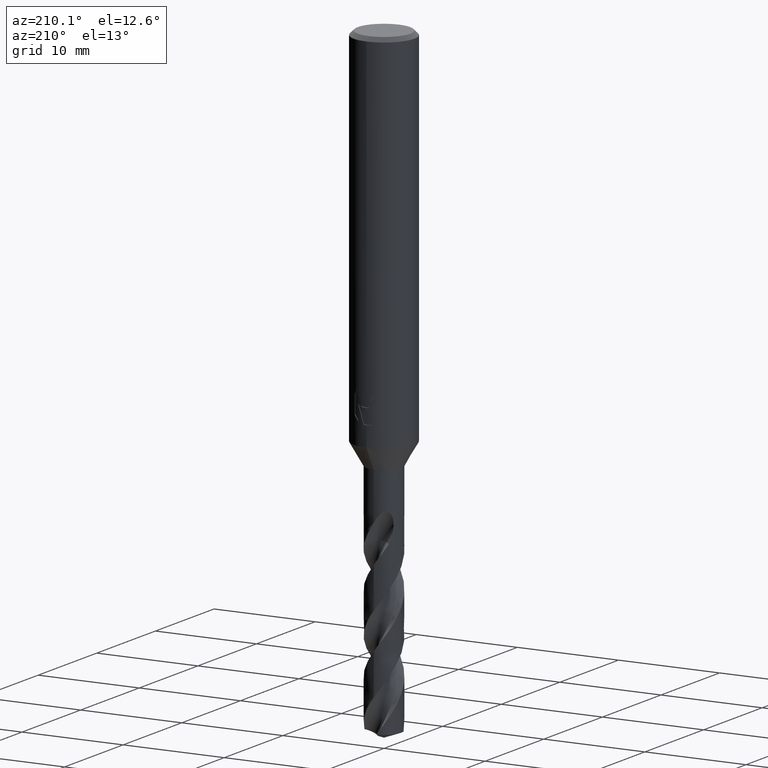
[diagram: clean part render]
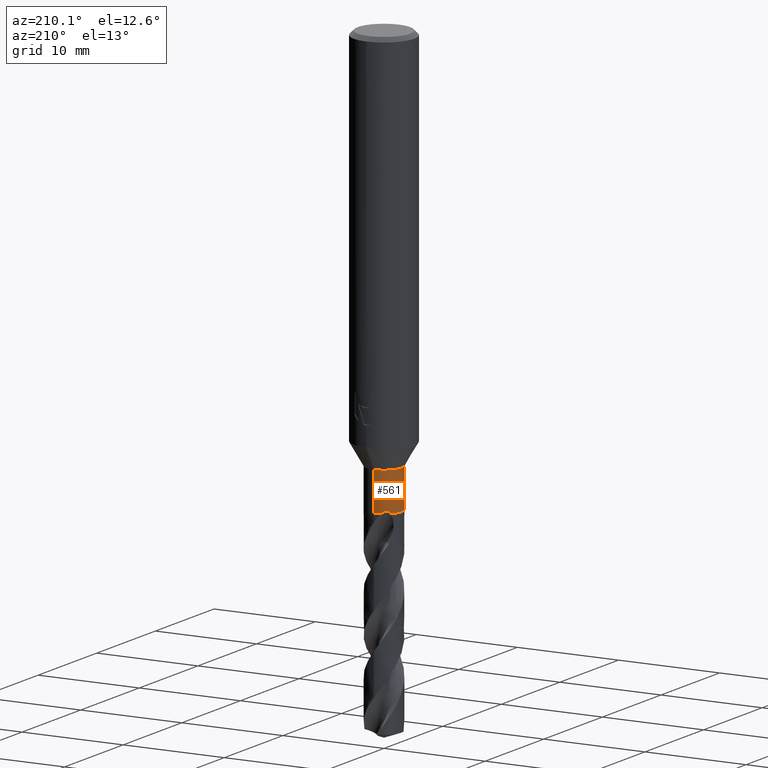
[diagram: same view with one face highlighted and labeled with its STEP entity id]
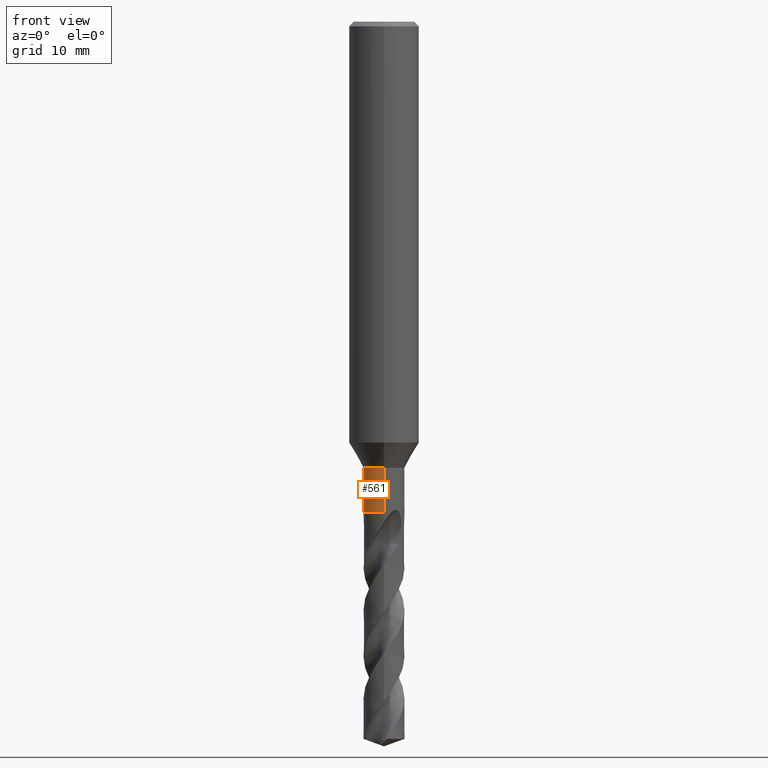
[diagram: same view with one face highlighted and labeled with its STEP entity id]
A machine part, auxiliary view. The second image highlights one B-rep face of the part: STEP entity #561.
A second angle (front view) of the same face is appended — the face is thin or edge-on in the first view.
In plain terms, the highlighted cylindrical surface (edge-blend (fillet) strip) has radius 1.75 mm, axis along (-0, -0, 1).
Its self-contained STEP definition (entity closure, byte-faithful):
#301=EDGE_CURVE('',#497,#597,#796,.T.);
#403=EDGE_CURVE('',#569,#497,#910,.T.);
#447=VERTEX_POINT('',#958);
#477=EDGE_CURVE('',#481,#509,#990,.T.);
#481=VERTEX_POINT('',#994);
#497=VERTEX_POINT('',#1012);
#509=VERTEX_POINT('',#1024);
#561=ADVANCED_FACE('',(#1081),#1082,.T.);
#569=VERTEX_POINT('',#1091);
#597=VERTEX_POINT('',#1124);
#599=EDGE_CURVE('',#481,#447,#1126,.T.);
#627=EDGE_CURVE('',#597,#447,#1156,.T.);
#633=EDGE_CURVE('',#569,#509,#1162,.T.);
#796=CIRCLE('',#2106,1.75);
#910=LINE('',#2575,#2576);
#958=CARTESIAN_POINT('',(-2.14306111918916E-016,1.75,-42.0));
#990=B_SPLINE_CURVE_WITH_KNOTS('',3,(#2919,#2920,#2921,#2922,#2923,#2924,#2925,#2926,#2927,#2928,#2929,#2930),.UNSPECIFIED.,.F.,.F.,(4,2,2,2,2,4),(0.0,0.329145595407577,0.529443022214587,0.6943503233528,0.859153776094462,1.0357119630476),.UNSPECIFIED.);
#994=CARTESIAN_POINT('',(-0.599466722486136,1.64412275959909,-42.0));
#1012=CARTESIAN_POINT('',(2.14306111918916E-016,-1.75,-38.1650635094611));
#1024=CARTESIAN_POINT('',(-1.32441615201466,1.14386269118398,-42.0));
#1081=FACE_OUTER_BOUND('',#3396,.T.);
#1082=CYLINDRICAL_SURFACE('',#3397,1.75);
#1091=CARTESIAN_POINT('',(2.14306111918916E-016,-1.75,-42.0));
#1124=CARTESIAN_POINT('',(0.0,1.75,-38.1650635094611));
#1126=CIRCLE('',#4407,1.75);
#1156=LINE('',#4506,#4507);
#1162=CIRCLE('',#4526,1.75);
#2106=AXIS2_PLACEMENT_3D('',#5196,#5197,#5198);
#2575=CARTESIAN_POINT('',(2.14306111918916E-016,-1.75,-40.0825317547305));
#2576=VECTOR('',#5339,1.0);
#2919=CARTESIAN_POINT('',(-0.599466722486126,1.6441227595991,-42.0));
#2920=CARTESIAN_POINT('',(-0.675472813455843,1.61641003439255,-41.9258885719186));
#2921=CARTESIAN_POINT('',(-0.7604895478843,1.57932734437737,-41.8565657924817));
#2922=CARTESIAN_POINT('',(-0.902008794747849,1.50087556427395,-41.7866875470167));
#2923=CARTESIAN_POINT('',(-0.956780841283037,1.46679972667483,-41.7697907458232));
#2924=CARTESIAN_POINT('',(-1.05584260957425,1.3966745922607,-41.766106574071));
#2925=CARTESIAN_POINT('',(-1.09790077254338,1.36373467234139,-41.7746401500357));
#2926=CARTESIAN_POINT('',(-1.17625998614586,1.29675265983898,-41.8118380997322));
#2927=CARTESIAN_POINT('',(-1.21071948868175,1.26432051464302,-41.8396032400281));
#2928=CARTESIAN_POINT('',(-1.27349979701186,1.20117415017881,-41.9100405856455));
#2929=CARTESIAN_POINT('',(-1.30100452471279,1.17096973609638,-41.9533842266015));
#2930=CARTESIAN_POINT('',(-1.32441615201466,1.14386269118398,-42.0));
#3396=EDGE_LOOP('',(#5512,#5513,#5514,#5515,#5516,#5517));
#3397=AXIS2_PLACEMENT_3D('',#5518,#5519,#5520);
#4407=AXIS2_PLACEMENT_3D('',#5585,#5586,#5587);
#4506=CARTESIAN_POINT('',(-2.14306111918916E-016,1.75,-40.0825317547305));
#4507=VECTOR('',#5613,1.0);
#4526=AXIS2_PLACEMENT_3D('',#5614,#5615,#5616);
#5196=CARTESIAN_POINT('',(0.0,0.0,-38.1650635094611));
#5197=DIRECTION('',(0.0,0.0,-1.0));
#5198=DIRECTION('',(0.0,1.0,0.0));
#5339=DIRECTION('',(-0.0,-0.0,1.0));
#5512=ORIENTED_EDGE('',*,*,#627,.T.);
#5513=ORIENTED_EDGE('',*,*,#599,.F.);
#5514=ORIENTED_EDGE('',*,*,#477,.T.);
#5515=ORIENTED_EDGE('',*,*,#633,.F.);
#5516=ORIENTED_EDGE('',*,*,#403,.T.);
#5517=ORIENTED_EDGE('',*,*,#301,.T.);
#5518=CARTESIAN_POINT('',(0.0,0.0,-40.0825317547305));
#5519=DIRECTION('',(-0.0,-0.0,1.0));
#5520=DIRECTION('',(0.0,1.0,0.0));
#5585=CARTESIAN_POINT('',(0.0,0.0,-42.0));
#5586=DIRECTION('',(0.0,0.0,-1.0));
#5587=DIRECTION('',(0.0,1.0,0.0));
#5613=DIRECTION('',(0.0,0.0,-1.0));
#5614=CARTESIAN_POINT('',(0.0,0.0,-42.0));
#5615=DIRECTION('',(0.0,0.0,-1.0));
#5616=DIRECTION('',(0.0,1.0,0.0));